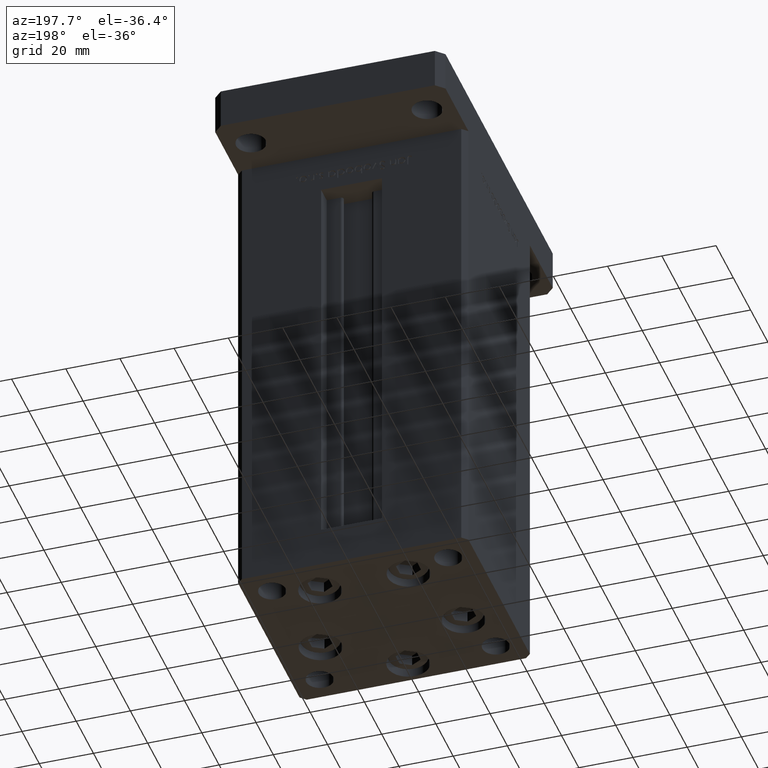
[diagram: clean part render]
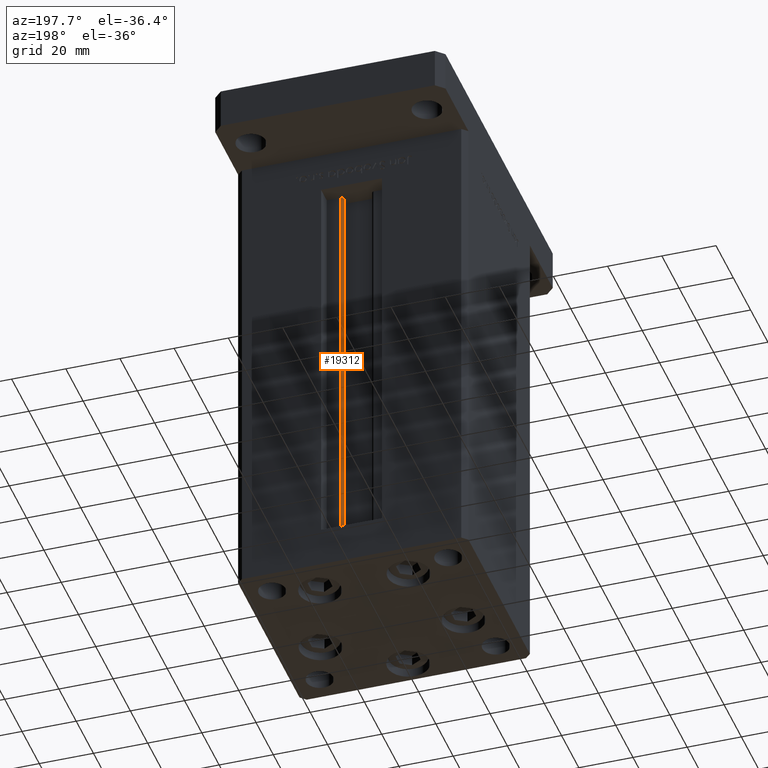
[diagram: same view with one face highlighted and labeled with its STEP entity id]
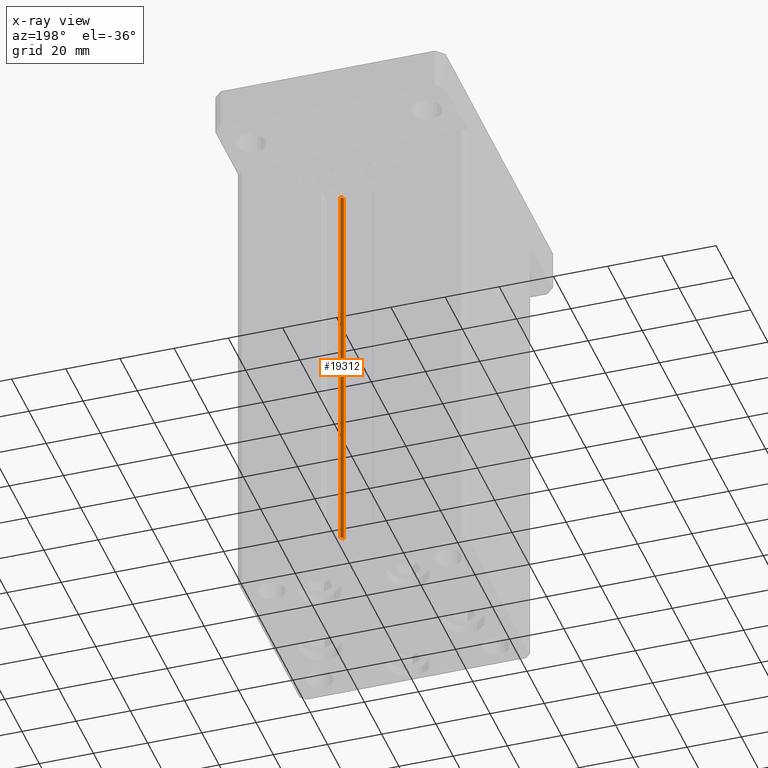
[diagram: x-ray of the same camera — body ghosted, the highlighted face saturated]
A machine part, auxiliary view. The second image highlights one B-rep face of the part: STEP entity #19312.
The next image is the same camera in x-ray: the body ghosted, the highlighted face saturated — about 0% of this face is hidden behind the body in this view.
In plain terms, the highlighted cylindrical surface (edge-blend (fillet) strip) has radius 0.9333 mm, axis along (0, 0, 1).
Its self-contained STEP definition (entity closure, byte-faithful):
#2234 = CARTESIAN_POINT ( 'NONE',  ( 6.183333333333999704, 30.06666666666599141, 0.000000000000000000 ) ) ;
#2293 = DIRECTION ( 'NONE',  ( 1.000000000000000000, 0.000000000000000000, 0.000000000000000000 ) ) ;
#3069 = ORIENTED_EDGE ( 'NONE', *, *, #11843, .F. ) ;
#3830 = CARTESIAN_POINT ( 'NONE',  ( 6.183333333333999704, 30.99999999999999289, 0.000000000000000000 ) ) ;
#6163 = VECTOR ( 'NONE', #41470, 1000.000000000000000 ) ;
#8846 = ORIENTED_EDGE ( 'NONE', *, *, #35602, .T. ) ;
#10238 = ORIENTED_EDGE ( 'NONE', *, *, #32991, .F. ) ;
#10900 = FACE_OUTER_BOUND ( 'NONE', #47210, .T. ) ;
#11843 = EDGE_CURVE ( 'NONE', #42633, #30390, #44003, .T. ) ;
#11921 = CARTESIAN_POINT ( 'NONE',  ( 5.375042956467944499, 29.59999999999899245, 148.5000000000000000 ) ) ;
#17921 = CARTESIAN_POINT ( 'NONE',  ( 6.183333333333999704, 30.06666666666599141, 148.5000000000000000 ) ) ;
#17976 = CARTESIAN_POINT ( 'NONE',  ( 6.183333333333999704, 30.99999999999999289, 148.5000000000000000 ) ) ;
#18774 = DIRECTION ( 'NONE',  ( 1.000000000000000000, 0.000000000000000000, 0.000000000000000000 ) ) ;
#19312 = ADVANCED_FACE ( 'NONE', ( #10900 ), #51876, .T. ) ;
#20050 = CARTESIAN_POINT ( 'NONE',  ( 5.375042956467943611, 29.59999999999899245, 0.000000000000000000 ) ) ;
#20075 = VERTEX_POINT ( 'NONE', #11921 ) ;
#20110 = DIRECTION ( 'NONE',  ( -0.000000000000000000, -0.000000000000000000, 1.000000000000000000 ) ) ;
#20231 = VECTOR ( 'NONE', #20110, 1000.000000000000000 ) ;
#21735 = ORIENTED_EDGE ( 'NONE', *, *, #25663, .T. ) ;
#25663 = EDGE_CURVE ( 'NONE', #42633, #20075, #52893, .T. ) ;
#27243 = CARTESIAN_POINT ( 'NONE',  ( 6.183333333333999704, 30.06666666666599141, 0.000000000000000000 ) ) ;
#30390 = VERTEX_POINT ( 'NONE', #38968 ) ;
#32834 = CARTESIAN_POINT ( 'NONE',  ( 5.375042956467943611, 29.59999999999899245, 0.000000000000000000 ) ) ;
#32991 = EDGE_CURVE ( 'NONE', #30390, #43357, #53469, .T. ) ;
#34458 = DIRECTION ( 'NONE',  ( 1.000000000000000000, 0.000000000000000000, 0.000000000000000000 ) ) ;
#35602 = EDGE_CURVE ( 'NONE', #20075, #43357, #41964, .T. ) ;
#38789 = AXIS2_PLACEMENT_3D ( 'NONE', #27243, #48401, #2293 ) ;
#38968 = CARTESIAN_POINT ( 'NONE',  ( 6.183333333333999704, 30.99999999999999289, 0.000000000000000000 ) ) ;
#41470 = DIRECTION ( 'NONE',  ( -0.000000000000000000, -0.000000000000000000, 1.000000000000000000 ) ) ;
#41964 = CIRCLE ( 'NONE', #44592, 0.9333333333340015914 ) ;
#42633 = VERTEX_POINT ( 'NONE', #32834 ) ;
#43357 = VERTEX_POINT ( 'NONE', #17976 ) ;
#44003 = CIRCLE ( 'NONE', #38789, 0.9333333333340015914 ) ;
#44592 = AXIS2_PLACEMENT_3D ( 'NONE', #17921, #51846, #34458 ) ;
#47210 = EDGE_LOOP ( 'NONE', ( #10238, #3069, #21735, #8846 ) ) ;
#47583 = AXIS2_PLACEMENT_3D ( 'NONE', #2234, #52144, #18774 ) ;
#48401 = DIRECTION ( 'NONE',  ( -0.000000000000000000, -0.000000000000000000, -1.000000000000000000 ) ) ;
#51846 = DIRECTION ( 'NONE',  ( 0.000000000000000000, 0.000000000000000000, -1.000000000000000000 ) ) ;
#51876 = CYLINDRICAL_SURFACE ( 'NONE', #47583, 0.9333333333340015914 ) ;
#52144 = DIRECTION ( 'NONE',  ( -0.000000000000000000, -0.000000000000000000, 1.000000000000000000 ) ) ;
#52893 = LINE ( 'NONE', #20050, #6163 ) ;
#53469 = LINE ( 'NONE', #3830, #20231 ) ;